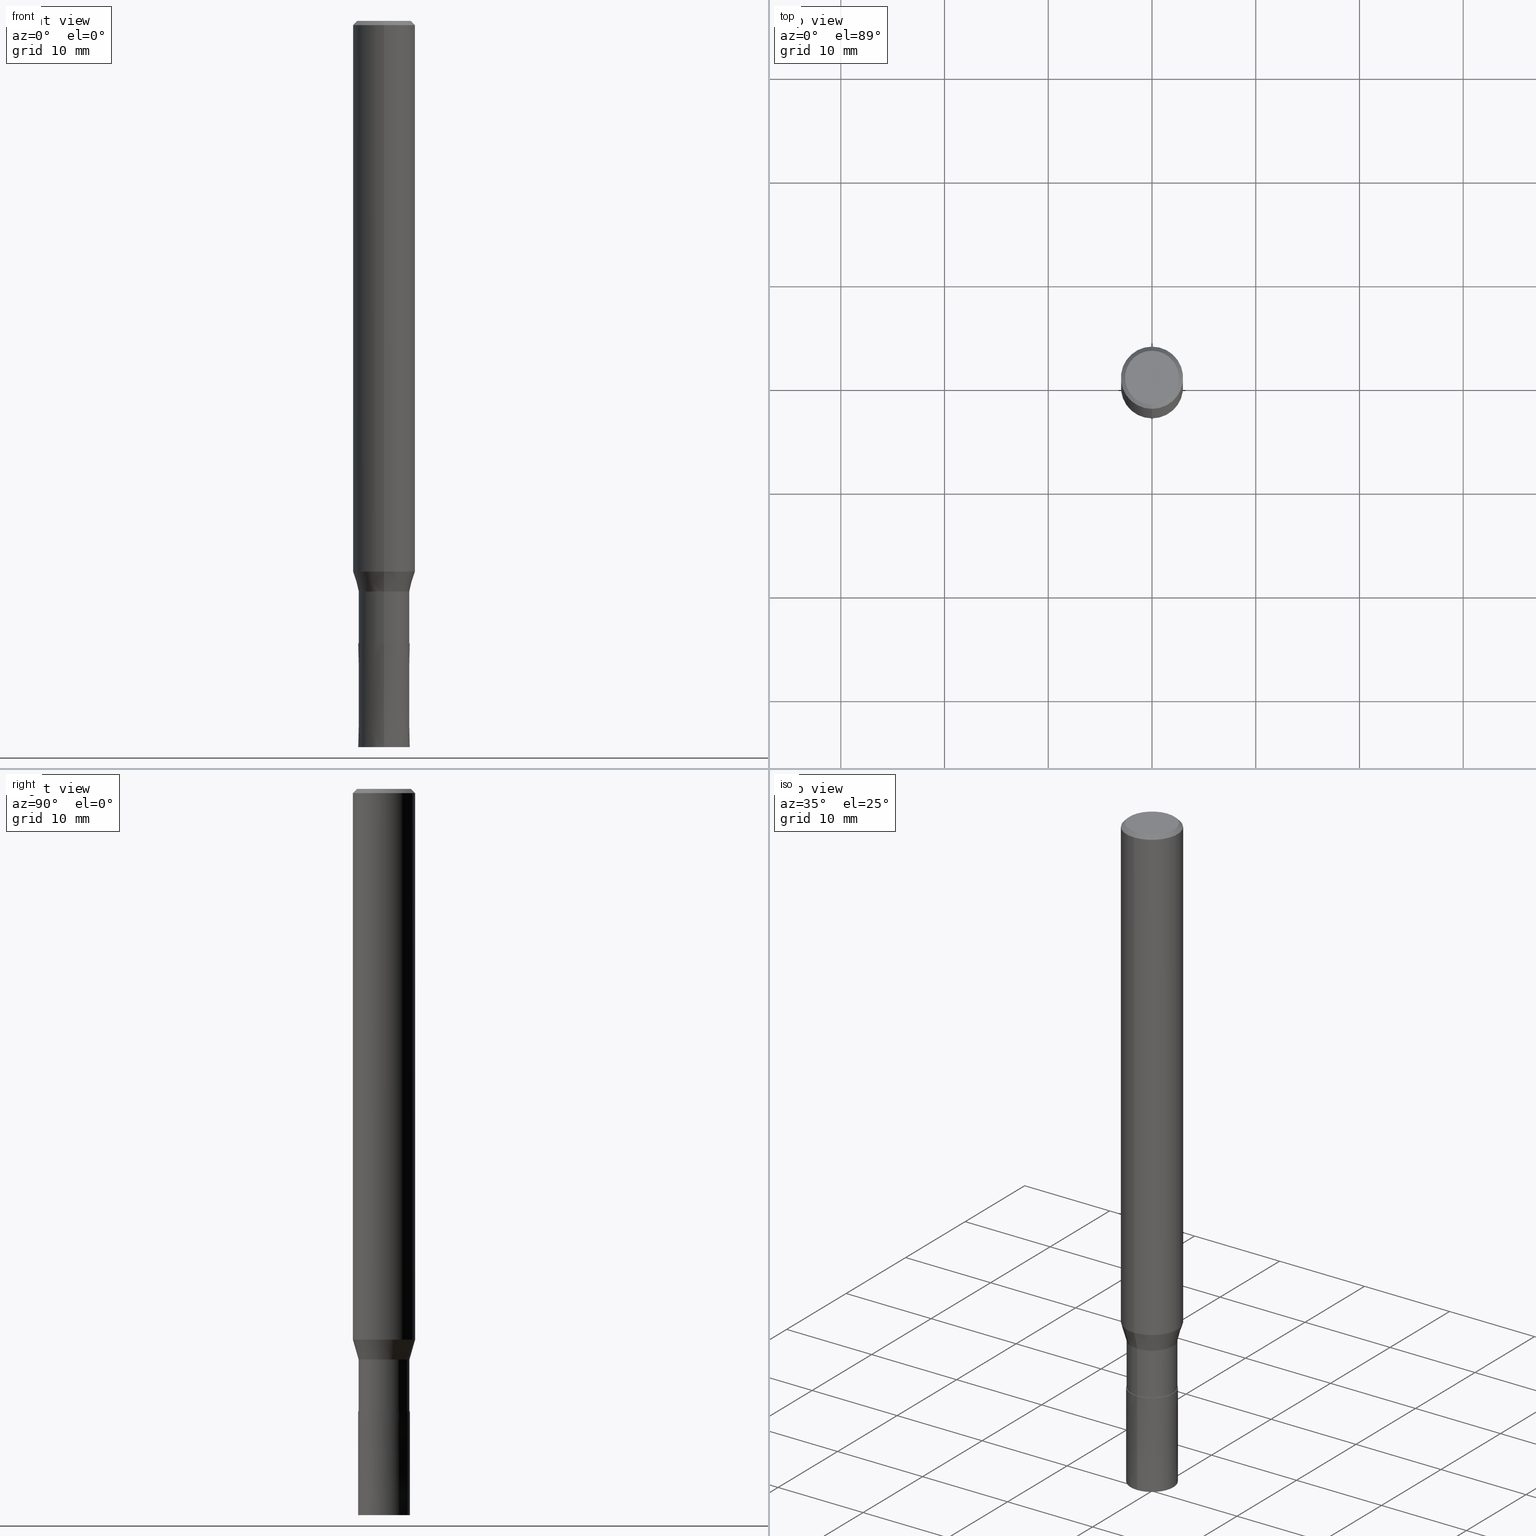
[diagram: canonical four-view strip — front | top / right | iso, engineering-drawing reading convention]
A machine part, canonical four-view strip (front | top / right | iso — engineering-drawing reading convention). The complete STEP part file that produces these views, byte-faithful:
ISO-10303-21;
HEADER;
FILE_DESCRIPTION(('no description'),'unknown implementation level');
FILE_NAME('DLC-AZS3050-150-Huellk.stp','  ',('CIMSOURCE GmbH'),('CADClick - KiM GmbH - www.kimweb.de'),'unknown preprocess','ACIS','unknown authorization');
FILE_SCHEMA(('automotive_design'));
ENDSEC;
DATA;
#1=MECHANICAL_DESIGN_GEOMETRIC_PRESENTATION_REPRESENTATION(' ',(#14,#15,#16,#17,#18,#19,#20,#21,#22,#23,#24,#25,#26,#27,#28,#29,#30,#31,#32,#33,#34,#35,#36,#37,#38,#39,#40,#41,#42,#43,#44,#45,#46,#47,#48,#49,#50,#51,#52,#53,#54,#55,#56,#57,#58,#59,#60,#61,#62,#63,#64,#65,#66,#67,#68,#69,#70,#71,#72),#10);
#2=PRODUCT_DEFINITION_CONTEXT('',#73,'design');
#3=APPLICATION_PROTOCOL_DEFINITION('INTERNATIONAL STANDARD','automotive_design',1994,#73);
#4=PRODUCT_CATEGORY_RELATIONSHIP('NONE','NONE',#74,#75);
#5=SHAPE_DEFINITION_REPRESENTATION(#76,#77);
#6=PRODUCT_DEFINITION_CONTEXT('',#78,'design');
#7=APPLICATION_PROTOCOL_DEFINITION('INTERNATIONAL STANDARD','automotive_design',1994,#78);
#8=PRODUCT_CATEGORY_RELATIONSHIP('NONE','NONE',#79,#80);
#9=SHAPE_DEFINITION_REPRESENTATION(#81,#82);
#10= (GEOMETRIC_REPRESENTATION_CONTEXT(3)GLOBAL_UNCERTAINTY_ASSIGNED_CONTEXT((#85))GLOBAL_UNIT_ASSIGNED_CONTEXT((#87,#88,#89))REPRESENTATION_CONTEXT('NONE','WORKSPACE'));
#14=STYLED_ITEM('',(#91),#92);
#15=STYLED_ITEM('',(#93),#94);
#16=STYLED_ITEM('',(#95),#96);
#17=STYLED_ITEM('',(#97),#98);
#18=STYLED_ITEM('',(#99),#100);
#19=STYLED_ITEM('',(#101),#102);
#20=STYLED_ITEM('',(#103),#104);
#21=STYLED_ITEM('',(#105),#106);
#22=STYLED_ITEM('',(#107),#108);
#23=STYLED_ITEM('',(#109),#110);
#24=STYLED_ITEM('',(#111),#112);
#25=STYLED_ITEM('',(#113),#114);
#26=STYLED_ITEM('',(#115),#116);
#27=STYLED_ITEM('',(#117),#118);
#28=STYLED_ITEM('',(#119),#120);
#29=STYLED_ITEM('',(#121),#122);
#30=STYLED_ITEM('',(#123),#124);
#31=STYLED_ITEM('',(#125),#126);
#32=STYLED_ITEM('',(#127),#128);
#33=STYLED_ITEM('',(#129),#130);
#34=STYLED_ITEM('',(#131),#132);
#35=STYLED_ITEM('',(#133),#134);
#36=STYLED_ITEM('',(#135),#136);
#37=STYLED_ITEM('',(#137),#138);
#38=STYLED_ITEM('',(#139),#140);
#39=STYLED_ITEM('',(#141),#142);
#40=STYLED_ITEM('',(#143),#144);
#41=STYLED_ITEM('',(#145),#146);
#42=STYLED_ITEM('',(#147),#148);
#43=STYLED_ITEM('',(#149),#150);
#44=STYLED_ITEM('',(#151),#152);
#45=STYLED_ITEM('',(#153),#154);
#46=STYLED_ITEM('',(#155),#156);
#47=STYLED_ITEM('',(#157),#158);
#48=STYLED_ITEM('',(#159),#160);
#49=STYLED_ITEM('',(#161),#162);
#50=STYLED_ITEM('',(#163),#164);
#51=STYLED_ITEM('',(#165),#166);
#52=STYLED_ITEM('',(#167),#168);
#53=STYLED_ITEM('',(#169),#170);
#54=STYLED_ITEM('',(#171),#172);
#55=STYLED_ITEM('',(#173),#174);
#56=STYLED_ITEM('',(#175),#176);
#57=STYLED_ITEM('',(#177),#178);
#58=STYLED_ITEM('',(#179),#180);
#59=STYLED_ITEM('',(#181),#182);
#60=STYLED_ITEM('',(#183),#184);
#61=STYLED_ITEM('',(#185),#186);
#62=STYLED_ITEM('',(#187),#188);
#63=STYLED_ITEM('',(#189),#190);
#64=STYLED_ITEM('',(#191),#192);
#65=STYLED_ITEM('',(#193),#194);
#66=STYLED_ITEM('',(#195),#196);
#67=STYLED_ITEM('',(#197),#198);
#68=STYLED_ITEM('',(#199),#200);
#69=STYLED_ITEM('',(#201),#202);
#70=STYLED_ITEM('',(#203),#204);
#71=STYLED_ITEM('',(#205),#206);
#72=STYLED_ITEM('',(#207),#208);
#73=APPLICATION_CONTEXT(' ');
#74=PRODUCT_CATEGORY('part','NONE');
#75=PRODUCT_RELATED_PRODUCT_CATEGORY('detail',' ',(#209));
#76=PRODUCT_DEFINITION_SHAPE('NONE','NONE',#210);
#77=ADVANCED_BREP_SHAPE_REPRESENTATION('1',(#122,#211),#10);
#78=APPLICATION_CONTEXT(' ');
#79=PRODUCT_CATEGORY('part','NONE');
#80=PRODUCT_RELATED_PRODUCT_CATEGORY('detail',' ',(#212));
#81=PRODUCT_DEFINITION_SHAPE('NONE','NONE',#213);
#82=ADVANCED_BREP_SHAPE_REPRESENTATION('2',(#206,#214),#10);
#85=UNCERTAINTY_MEASURE_WITH_UNIT(LENGTH_MEASURE(1.0E-006),#87,'','');
#87= (CONVERSION_BASED_UNIT('MILLIMETRE',#217)LENGTH_UNIT()NAMED_UNIT(#220));
#88= (NAMED_UNIT(#222)PLANE_ANGLE_UNIT()SI_UNIT($,.RADIAN.));
#89= (NAMED_UNIT(#222)SOLID_ANGLE_UNIT()SI_UNIT($,.STERADIAN.));
#91=PRESENTATION_STYLE_ASSIGNMENT((#228));
#92=EDGE_CURVE('',#134,#146,#229,.T.);
#93=PRESENTATION_STYLE_ASSIGNMENT((#230));
#94=EDGE_CURVE('',#120,#104,#231,.T.);
#95=PRESENTATION_STYLE_ASSIGNMENT((#232));
#96=EDGE_CURVE('',#190,#168,#233,.T.);
#97=PRESENTATION_STYLE_ASSIGNMENT((#234));
#98=VERTEX_POINT('',#235);
#99=PRESENTATION_STYLE_ASSIGNMENT((#236));
#100=EDGE_CURVE('',#98,#162,#237,.T.);
#101=PRESENTATION_STYLE_ASSIGNMENT((#238));
#102=EDGE_CURVE('',#154,#124,#239,.T.);
#103=PRESENTATION_STYLE_ASSIGNMENT((#240));
#104=VERTEX_POINT('',#241);
#105=PRESENTATION_STYLE_ASSIGNMENT((#242));
#106=ADVANCED_FACE('',(#243),#244,.T.);
#107=PRESENTATION_STYLE_ASSIGNMENT((#245));
#108=ADVANCED_FACE('',(#246),#247,.T.);
#109=PRESENTATION_STYLE_ASSIGNMENT((#248));
#110=VERTEX_POINT('',#249);
#111=PRESENTATION_STYLE_ASSIGNMENT((#250));
#112=EDGE_CURVE('',#190,#132,#251,.T.);
#113=PRESENTATION_STYLE_ASSIGNMENT((#252));
#114=ADVANCED_FACE('',(#253),#254,.T.);
#115=PRESENTATION_STYLE_ASSIGNMENT((#255));
#116=ADVANCED_FACE('',(#256),#257,.T.);
#117=PRESENTATION_STYLE_ASSIGNMENT((#258));
#118=VERTEX_POINT('',#259);
#119=PRESENTATION_STYLE_ASSIGNMENT((#260));
#120=VERTEX_POINT('',#261);
#121=PRESENTATION_STYLE_ASSIGNMENT((#262));
#122=MANIFOLD_SOLID_BREP('1',#263);
#123=PRESENTATION_STYLE_ASSIGNMENT((#264));
#124=VERTEX_POINT('',#265);
#125=PRESENTATION_STYLE_ASSIGNMENT((#266));
#126=EDGE_CURVE('',#124,#134,#267,.T.);
#127=PRESENTATION_STYLE_ASSIGNMENT((#268));
#128=ADVANCED_FACE('',(#269),#270,.T.);
#129=PRESENTATION_STYLE_ASSIGNMENT((#271));
#130=ADVANCED_FACE('',(#272),#273,.T.);
#131=PRESENTATION_STYLE_ASSIGNMENT((#274));
#132=VERTEX_POINT('',#275);
#133=PRESENTATION_STYLE_ASSIGNMENT((#276));
#134=VERTEX_POINT('',#277);
#135=PRESENTATION_STYLE_ASSIGNMENT((#278));
#136=EDGE_CURVE('',#168,#152,#279,.T.);
#137=PRESENTATION_STYLE_ASSIGNMENT((#280));
#138=ADVANCED_FACE('',(#281),#282,.T.);
#139=PRESENTATION_STYLE_ASSIGNMENT((#283));
#140=EDGE_CURVE('',#166,#168,#284,.T.);
#141=PRESENTATION_STYLE_ASSIGNMENT((#285));
#142=ADVANCED_FACE('',(#286),#287,.T.);
#143=PRESENTATION_STYLE_ASSIGNMENT((#288));
#144=EDGE_CURVE('',#118,#152,#289,.T.);
#145=PRESENTATION_STYLE_ASSIGNMENT((#290));
#146=VERTEX_POINT('',#291);
#147=PRESENTATION_STYLE_ASSIGNMENT((#292));
#148=EDGE_CURVE('',#178,#98,#293,.T.);
#149=PRESENTATION_STYLE_ASSIGNMENT((#294));
#150=EDGE_CURVE('',#162,#110,#295,.T.);
#151=PRESENTATION_STYLE_ASSIGNMENT((#296));
#152=VERTEX_POINT('',#297);
#153=PRESENTATION_STYLE_ASSIGNMENT((#298));
#154=VERTEX_POINT('',#299);
#155=PRESENTATION_STYLE_ASSIGNMENT((#300));
#156=EDGE_CURVE('',#162,#98,#301,.T.);
#157=PRESENTATION_STYLE_ASSIGNMENT((#302));
#158=EDGE_CURVE('',#124,#154,#303,.T.);
#159=PRESENTATION_STYLE_ASSIGNMENT((#304));
#160=ADVANCED_FACE('',(#305,#306),#307,.T.);
#161=PRESENTATION_STYLE_ASSIGNMENT((#308));
#162=VERTEX_POINT('',#309);
#163=PRESENTATION_STYLE_ASSIGNMENT((#310));
#164=EDGE_CURVE('',#104,#162,#311,.T.);
#165=PRESENTATION_STYLE_ASSIGNMENT((#312));
#166=VERTEX_POINT('',#313);
#167=PRESENTATION_STYLE_ASSIGNMENT((#314));
#168=VERTEX_POINT('',#315);
#169=PRESENTATION_STYLE_ASSIGNMENT((#316));
#170=EDGE_CURVE('',#110,#178,#317,.T.);
#171=PRESENTATION_STYLE_ASSIGNMENT((#318));
#172=ADVANCED_FACE('',(#319),#320,.T.);
#173=PRESENTATION_STYLE_ASSIGNMENT((#321));
#174=EDGE_CURVE('',#132,#166,#322,.T.);
#175=PRESENTATION_STYLE_ASSIGNMENT((#323));
#176=ADVANCED_FACE('',(#324),#325,.T.);
#177=PRESENTATION_STYLE_ASSIGNMENT((#326));
#178=VERTEX_POINT('',#327);
#179=PRESENTATION_STYLE_ASSIGNMENT((#328));
#180=ADVANCED_FACE('',(#329),#330,.T.);
#181=PRESENTATION_STYLE_ASSIGNMENT((#331));
#182=ADVANCED_FACE('',(#332),#333,.T.);
#183=PRESENTATION_STYLE_ASSIGNMENT((#334));
#184=EDGE_CURVE('',#146,#134,#335,.T.);
#185=PRESENTATION_STYLE_ASSIGNMENT((#336));
#186=EDGE_CURVE('',#152,#118,#337,.T.);
#187=PRESENTATION_STYLE_ASSIGNMENT((#338));
#188=EDGE_CURVE('',#178,#110,#339,.T.);
#189=PRESENTATION_STYLE_ASSIGNMENT((#340));
#190=VERTEX_POINT('',#341);
#191=PRESENTATION_STYLE_ASSIGNMENT((#342));
#192=EDGE_CURVE('',#168,#190,#343,.T.);
#193=PRESENTATION_STYLE_ASSIGNMENT((#344));
#194=EDGE_CURVE('',#98,#120,#345,.T.);
#195=PRESENTATION_STYLE_ASSIGNMENT((#346));
#196=EDGE_CURVE('',#118,#190,#347,.T.);
#197=PRESENTATION_STYLE_ASSIGNMENT((#348));
#198=EDGE_CURVE('',#166,#132,#349,.T.);
#199=PRESENTATION_STYLE_ASSIGNMENT((#350));
#200=ADVANCED_FACE('',(#351),#352,.T.);
#201=PRESENTATION_STYLE_ASSIGNMENT((#353));
#202=EDGE_CURVE('',#146,#154,#354,.T.);
#203=PRESENTATION_STYLE_ASSIGNMENT((#355));
#204=EDGE_CURVE('',#104,#120,#356,.T.);
#205=PRESENTATION_STYLE_ASSIGNMENT((#357));
#206=MANIFOLD_SOLID_BREP('2',#358);
#207=PRESENTATION_STYLE_ASSIGNMENT((#359));
#208=ADVANCED_FACE('',(#360),#361,.T.);
#209=PRODUCT('1','1','PART-1-DESC',(#362));
#210=PRODUCT_DEFINITION('NONE','NONE',#363,#2);
#211=AXIS2_PLACEMENT_3D('',#364,#365,#366);
#212=PRODUCT('2','2','PART-2-DESC',(#367));
#213=PRODUCT_DEFINITION('NONE','NONE',#368,#6);
#214=AXIS2_PLACEMENT_3D('',#369,#370,#371);
#217=LENGTH_MEASURE_WITH_UNIT(LENGTH_MEASURE(1.0),#372);
#220=DIMENSIONAL_EXPONENTS(1.0,0.0,0.0,0.0,0.0,0.0,0.0);
#222=DIMENSIONAL_EXPONENTS(0.0,0.0,0.0,0.0,0.0,0.0,0.0);
#228=CURVE_STYLE('',#373,POSITIVE_LENGTH_MEASURE(1.0E-006),#374);
#229=CIRCLE('',#375,2.5);
#230=CURVE_STYLE('',#376,POSITIVE_LENGTH_MEASURE(1.0E-006),#377);
#231=CIRCLE('',#378,2.99995);
#232=CURVE_STYLE('',#379,POSITIVE_LENGTH_MEASURE(1.0E-006),#380);
#233=CIRCLE('',#381,3.0);
#234=POINT_STYLE(' ',#382,POSITIVE_LENGTH_MEASURE(1.0E-006),#383);
#235=CARTESIAN_POINT('',(3.00022433654713E-016,-2.44995,-55.0));
#236=CURVE_STYLE('',#384,POSITIVE_LENGTH_MEASURE(1.0E-006),#385);
#237=CIRCLE('',#386,2.44995);
#238=CURVE_STYLE('',#387,POSITIVE_LENGTH_MEASURE(1.0E-006),#388);
#239=CIRCLE('',#389,2.4999);
#240=POINT_STYLE(' ',#390,POSITIVE_LENGTH_MEASURE(1.0E-006),#391);
#241=CARTESIAN_POINT('',(0.0,2.99995,-53.082));
#242=SURFACE_STYLE_USAGE(.BOTH.,#392);
#243=FACE_OUTER_BOUND('',#393,.T.);
#244=CYLINDRICAL_SURFACE('',#394,2.44995);
#245=SURFACE_STYLE_USAGE(.BOTH.,#395);
#246=FACE_OUTER_BOUND('',#396,.T.);
#247=CYLINDRICAL_SURFACE('',#397,3.0);
#248=POINT_STYLE(' ',#398,POSITIVE_LENGTH_MEASURE(1.0E-006),#399);
#249=CARTESIAN_POINT('',(0.0,2.44995,-60.0));
#250=CURVE_STYLE('',#400,POSITIVE_LENGTH_MEASURE(1.0E-006),#401);
#251=LINE('',#402,#403);
#252=SURFACE_STYLE_USAGE(.BOTH.,#404);
#253=FACE_OUTER_BOUND('',#405,.T.);
#254=CONICAL_SURFACE('',#406,2.49995,9.99999999968777E-006);
#255=SURFACE_STYLE_USAGE(.BOTH.,#407);
#256=FACE_OUTER_BOUND('',#408,.T.);
#257=CYLINDRICAL_SURFACE('',#409,2.44995);
#258=POINT_STYLE(' ',#410,POSITIVE_LENGTH_MEASURE(1.0E-006),#411);
#259=CARTESIAN_POINT('',(0.0,2.6,0.0));
#260=POINT_STYLE(' ',#412,POSITIVE_LENGTH_MEASURE(1.0E-006),#413);
#261=CARTESIAN_POINT('',(3.67375783114944E-016,-2.99995,-53.082));
#262=SURFACE_STYLE_USAGE(.BOTH.,#414);
#263=CLOSED_SHELL('',(#106,#176,#138,#128,#160,#172,#130,#108,#180,#116,#142));
#264=POINT_STYLE(' ',#415,POSITIVE_LENGTH_MEASURE(1.0E-006),#416);
#265=CARTESIAN_POINT('',(0.0,2.4999,-60.0));
#266=CURVE_STYLE('',#417,POSITIVE_LENGTH_MEASURE(1.0E-006),#418);
#267=LINE('',#419,#420);
#268=SURFACE_STYLE_USAGE(.BOTH.,#421);
#269=FACE_OUTER_BOUND('',#422,.T.);
#270=CONICAL_SURFACE('',#423,2.8,0.78539816339745);
#271=SURFACE_STYLE_USAGE(.BOTH.,#424);
#272=FACE_OUTER_BOUND('',#425,.T.);
#273=CONICAL_SURFACE('',#426,2.8,0.78539816339745);
#274=POINT_STYLE(' ',#427,POSITIVE_LENGTH_MEASURE(1.0E-006),#428);
#275=CARTESIAN_POINT('',(0.0,3.0,-53.082));
#276=POINT_STYLE(' ',#429,POSITIVE_LENGTH_MEASURE(1.0E-006),#430);
#277=CARTESIAN_POINT('',(0.0,2.5,-70.0));
#278=CURVE_STYLE('',#431,POSITIVE_LENGTH_MEASURE(1.0E-006),#432);
#279=LINE('',#433,#434);
#280=SURFACE_STYLE_USAGE(.BOTH.,#435);
#281=FACE_OUTER_BOUND('',#436,.T.);
#282=CYLINDRICAL_SURFACE('',#437,3.0);
#283=CURVE_STYLE('',#438,POSITIVE_LENGTH_MEASURE(1.0E-006),#439);
#284=LINE('',#440,#441);
#285=SURFACE_STYLE_USAGE(.BOTH.,#442);
#286=FACE_OUTER_BOUND('',#443,.T.);
#287=PLANE('',#444);
#288=CURVE_STYLE('',#445,POSITIVE_LENGTH_MEASURE(1.0E-006),#446);
#289=CIRCLE('',#447,2.6);
#290=POINT_STYLE(' ',#448,POSITIVE_LENGTH_MEASURE(1.0E-006),#449);
#291=CARTESIAN_POINT('',(3.06151588455594E-016,-2.5,-70.0));
#292=CURVE_STYLE('',#450,POSITIVE_LENGTH_MEASURE(1.0E-006),#451);
#293=LINE('',#452,#453);
#294=CURVE_STYLE('',#454,POSITIVE_LENGTH_MEASURE(1.0E-006),#455);
#295=LINE('',#456,#457);
#296=POINT_STYLE(' ',#458,POSITIVE_LENGTH_MEASURE(1.0E-006),#459);
#297=CARTESIAN_POINT('',(3.18397651993818E-016,-2.6,0.0));
#298=POINT_STYLE(' ',#460,POSITIVE_LENGTH_MEASURE(1.0E-006),#461);
#299=CARTESIAN_POINT('',(3.06139342392056E-016,-2.4999,-60.0));
#300=CURVE_STYLE('',#462,POSITIVE_LENGTH_MEASURE(1.0E-006),#463);
#301=CIRCLE('',#464,2.44995);
#302=CURVE_STYLE('',#465,POSITIVE_LENGTH_MEASURE(1.0E-006),#466);
#303=CIRCLE('',#467,2.4999);
#304=SURFACE_STYLE_USAGE(.BOTH.,#468);
#305=FACE_OUTER_BOUND('',#469,.T.);
#306=FACE_BOUND('',#470,.T.);
#307=PLANE('',#471);
#308=POINT_STYLE(' ',#472,POSITIVE_LENGTH_MEASURE(1.0E-006),#473);
#309=CARTESIAN_POINT('',(0.0,2.44995,-55.0));
#310=CURVE_STYLE('',#474,POSITIVE_LENGTH_MEASURE(1.0E-006),#475);
#311=LINE('',#476,#477);
#312=POINT_STYLE(' ',#478,POSITIVE_LENGTH_MEASURE(1.0E-006),#479);
#313=CARTESIAN_POINT('',(3.67381906146713E-016,-3.0,-53.082));
#314=POINT_STYLE(' ',#480,POSITIVE_LENGTH_MEASURE(1.0E-006),#481);
#315=CARTESIAN_POINT('',(3.67381906146713E-016,-3.0,-0.399999999999999));
#316=CURVE_STYLE('',#482,POSITIVE_LENGTH_MEASURE(1.0E-006),#483);
#317=CIRCLE('',#484,2.44995);
#318=SURFACE_STYLE_USAGE(.BOTH.,#485);
#319=FACE_OUTER_BOUND('',#486,.T.);
#320=PLANE('',#487);
#321=CURVE_STYLE('',#488,POSITIVE_LENGTH_MEASURE(1.0E-006),#489);
#322=CIRCLE('',#490,3.0);
#323=SURFACE_STYLE_USAGE(.BOTH.,#491);
#324=FACE_OUTER_BOUND('',#492,.T.);
#325=CONICAL_SURFACE('',#493,2.72495,0.279263447774572);
#326=POINT_STYLE(' ',#494,POSITIVE_LENGTH_MEASURE(1.0E-006),#495);
#327=CARTESIAN_POINT('',(3.00022433654713E-016,-2.44995,-60.0));
#328=SURFACE_STYLE_USAGE(.BOTH.,#496);
#329=FACE_OUTER_BOUND('',#497,.T.);
#330=CONICAL_SURFACE('',#498,2.72495,0.279263447774572);
#331=SURFACE_STYLE_USAGE(.BOTH.,#499);
#332=FACE_OUTER_BOUND('',#500,.T.);
#333=PLANE('',#501);
#334=CURVE_STYLE('',#502,POSITIVE_LENGTH_MEASURE(1.0E-006),#503);
#335=CIRCLE('',#504,2.5);
#336=CURVE_STYLE('',#505,POSITIVE_LENGTH_MEASURE(1.0E-006),#506);
#337=CIRCLE('',#507,2.6);
#338=CURVE_STYLE('',#508,POSITIVE_LENGTH_MEASURE(1.0E-006),#509);
#339=CIRCLE('',#510,2.44995);
#340=POINT_STYLE(' ',#511,POSITIVE_LENGTH_MEASURE(1.0E-006),#512);
#341=CARTESIAN_POINT('',(0.0,3.0,-0.399999999999999));
#342=CURVE_STYLE('',#513,POSITIVE_LENGTH_MEASURE(1.0E-006),#514);
#343=CIRCLE('',#515,3.0);
#344=CURVE_STYLE('',#516,POSITIVE_LENGTH_MEASURE(1.0E-006),#517);
#345=LINE('',#518,#519);
#346=CURVE_STYLE('',#520,POSITIVE_LENGTH_MEASURE(1.0E-006),#521);
#347=LINE('',#522,#523);
#348=CURVE_STYLE('',#524,POSITIVE_LENGTH_MEASURE(1.0E-006),#525);
#349=CIRCLE('',#526,3.0);
#350=SURFACE_STYLE_USAGE(.BOTH.,#527);
#351=FACE_OUTER_BOUND('',#528,.T.);
#352=PLANE('',#529);
#353=CURVE_STYLE('',#530,POSITIVE_LENGTH_MEASURE(1.0E-006),#531);
#354=LINE('',#532,#533);
#355=CURVE_STYLE('',#534,POSITIVE_LENGTH_MEASURE(1.0E-006),#535);
#356=CIRCLE('',#536,2.99995);
#357=SURFACE_STYLE_USAGE(.BOTH.,#537);
#358=CLOSED_SHELL('',(#208,#200,#114,#182));
#359=SURFACE_STYLE_USAGE(.BOTH.,#538);
#360=FACE_OUTER_BOUND('',#539,.T.);
#361=CONICAL_SURFACE('',#540,2.49995,9.99999999968777E-006);
#362=PRODUCT_CONTEXT('',#73,'mechanical');
#363=PRODUCT_DEFINITION_FORMATION_WITH_SPECIFIED_SOURCE(' ','NONE',#209,.NOT_KNOWN.);
#364=CARTESIAN_POINT('',(0.0,0.0,0.0));
#365=DIRECTION('',(0.0,0.0,1.0));
#366=DIRECTION('',(1.0,0.0,0.0));
#367=PRODUCT_CONTEXT('',#78,'mechanical');
#368=PRODUCT_DEFINITION_FORMATION_WITH_SPECIFIED_SOURCE(' ','NONE',#212,.NOT_KNOWN.);
#369=CARTESIAN_POINT('',(0.0,0.0,0.0));
#370=DIRECTION('',(0.0,0.0,1.0));
#371=DIRECTION('',(1.0,0.0,0.0));
#372= (NAMED_UNIT(#220)LENGTH_UNIT()SI_UNIT(.MILLI.,.METRE.));
#373=DRAUGHTING_PRE_DEFINED_CURVE_FONT('continuous');
#374=COLOUR_RGB('',0.800000011920929,0.800000011920929,0.800000011920929);
#375=AXIS2_PLACEMENT_3D('',#542,#543,#544);
#376=DRAUGHTING_PRE_DEFINED_CURVE_FONT('continuous');
#377=COLOUR_RGB('',0.498039215803146,0.498039215803146,0.498039215803146);
#378=AXIS2_PLACEMENT_3D('',#545,#546,#547);
#379=DRAUGHTING_PRE_DEFINED_CURVE_FONT('continuous');
#380=COLOUR_RGB('',0.498039215803146,0.498039215803146,0.498039215803146);
#381=AXIS2_PLACEMENT_3D('',#548,#549,#550);
#382=PRE_DEFINED_MARKER('');
#383=COLOUR_RGB('',0.498039215803146,0.498039215803146,0.498039215803146);
#384=DRAUGHTING_PRE_DEFINED_CURVE_FONT('continuous');
#385=COLOUR_RGB('',0.498039215803146,0.498039215803146,0.498039215803146);
#386=AXIS2_PLACEMENT_3D('',#551,#552,#553);
#387=DRAUGHTING_PRE_DEFINED_CURVE_FONT('continuous');
#388=COLOUR_RGB('',0.800000011920929,0.800000011920929,0.800000011920929);
#389=AXIS2_PLACEMENT_3D('',#554,#555,#556);
#390=PRE_DEFINED_MARKER('');
#391=COLOUR_RGB('',0.498039215803146,0.498039215803146,0.498039215803146);
#392=SURFACE_SIDE_STYLE('',(#557));
#393=EDGE_LOOP('',(#558,#559,#560,#561));
#394=AXIS2_PLACEMENT_3D('',#562,#563,#564);
#395=SURFACE_SIDE_STYLE('',(#565));
#396=EDGE_LOOP('',(#566,#567,#568,#569));
#397=AXIS2_PLACEMENT_3D('',#570,#571,#572);
#398=PRE_DEFINED_MARKER('');
#399=COLOUR_RGB('',0.498039215803146,0.498039215803146,0.498039215803146);
#400=DRAUGHTING_PRE_DEFINED_CURVE_FONT('continuous');
#401=COLOUR_RGB('',0.498039215803146,0.498039215803146,0.498039215803146);
#402=CARTESIAN_POINT('',(-3.67381906146713E-016,3.0,-26.741));
#403=VECTOR('',#573,1.0);
#404=SURFACE_SIDE_STYLE('',(#574));
#405=EDGE_LOOP('',(#575,#576,#577,#578));
#406=AXIS2_PLACEMENT_3D('',#579,#580,#581);
#407=SURFACE_SIDE_STYLE('',(#582));
#408=EDGE_LOOP('',(#583,#584,#585,#586));
#409=AXIS2_PLACEMENT_3D('',#587,#588,#589);
#410=PRE_DEFINED_MARKER('');
#411=COLOUR_RGB('',0.498039215803146,0.498039215803146,0.498039215803146);
#412=PRE_DEFINED_MARKER('');
#413=COLOUR_RGB('',0.498039215803146,0.498039215803146,0.498039215803146);
#414=SURFACE_SIDE_STYLE('',(#590));
#415=PRE_DEFINED_MARKER('');
#416=COLOUR_RGB('',0.800000011920929,0.800000011920929,0.800000011920929);
#417=DRAUGHTING_PRE_DEFINED_CURVE_FONT('continuous');
#418=COLOUR_RGB('',0.800000011920929,0.800000011920929,0.800000011920929);
#419=CARTESIAN_POINT('',(-3.06145465423825E-016,2.49995,-65.0));
#420=VECTOR('',#591,1.0);
#421=SURFACE_SIDE_STYLE('',(#592));
#422=EDGE_LOOP('',(#593,#594,#595,#596));
#423=AXIS2_PLACEMENT_3D('',#597,#598,#599);
#424=SURFACE_SIDE_STYLE('',(#600));
#425=EDGE_LOOP('',(#601,#602,#603,#604));
#426=AXIS2_PLACEMENT_3D('',#605,#606,#607);
#427=PRE_DEFINED_MARKER('');
#428=COLOUR_RGB('',0.498039215803146,0.498039215803146,0.498039215803146);
#429=PRE_DEFINED_MARKER('');
#430=COLOUR_RGB('',0.800000011920929,0.800000011920929,0.800000011920929);
#431=DRAUGHTING_PRE_DEFINED_CURVE_FONT('continuous');
#432=COLOUR_RGB('',0.498039215803146,0.498039215803146,0.498039215803146);
#433=CARTESIAN_POINT('',(3.42889779070266E-016,-2.8,-0.200000000000003));
#434=VECTOR('',#608,1.0);
#435=SURFACE_SIDE_STYLE('',(#609));
#436=EDGE_LOOP('',(#610,#611,#612,#613));
#437=AXIS2_PLACEMENT_3D('',#614,#615,#616);
#438=DRAUGHTING_PRE_DEFINED_CURVE_FONT('continuous');
#439=COLOUR_RGB('',0.498039215803146,0.498039215803146,0.498039215803146);
#440=CARTESIAN_POINT('',(3.67381906146713E-016,-3.0,-26.741));
#441=VECTOR('',#617,1.0);
#442=SURFACE_SIDE_STYLE('',(#618));
#443=EDGE_LOOP('',(#619,#620));
#444=AXIS2_PLACEMENT_3D('',#621,#622,#623);
#445=DRAUGHTING_PRE_DEFINED_CURVE_FONT('continuous');
#446=COLOUR_RGB('',0.498039215803146,0.498039215803146,0.498039215803146);
#447=AXIS2_PLACEMENT_3D('',#624,#625,#626);
#448=PRE_DEFINED_MARKER('');
#449=COLOUR_RGB('',0.800000011920929,0.800000011920929,0.800000011920929);
#450=DRAUGHTING_PRE_DEFINED_CURVE_FONT('continuous');
#451=COLOUR_RGB('',0.498039215803146,0.498039215803146,0.498039215803146);
#452=CARTESIAN_POINT('',(3.00022433654713E-016,-2.44995,-57.5));
#453=VECTOR('',#627,1.0);
#454=DRAUGHTING_PRE_DEFINED_CURVE_FONT('continuous');
#455=COLOUR_RGB('',0.498039215803146,0.498039215803146,0.498039215803146);
#456=CARTESIAN_POINT('',(-3.00022433654713E-016,2.44995,-57.5));
#457=VECTOR('',#628,1.0);
#458=PRE_DEFINED_MARKER('');
#459=COLOUR_RGB('',0.498039215803146,0.498039215803146,0.498039215803146);
#460=PRE_DEFINED_MARKER('');
#461=COLOUR_RGB('',0.800000011920929,0.800000011920929,0.800000011920929);
#462=DRAUGHTING_PRE_DEFINED_CURVE_FONT('continuous');
#463=COLOUR_RGB('',0.498039215803146,0.498039215803146,0.498039215803146);
#464=AXIS2_PLACEMENT_3D('',#629,#630,#631);
#465=DRAUGHTING_PRE_DEFINED_CURVE_FONT('continuous');
#466=COLOUR_RGB('',0.800000011920929,0.800000011920929,0.800000011920929);
#467=AXIS2_PLACEMENT_3D('',#632,#633,#634);
#468=SURFACE_SIDE_STYLE('',(#635));
#469=EDGE_LOOP('',(#636,#637));
#470=EDGE_LOOP('',(#638,#639));
#471=AXIS2_PLACEMENT_3D('',#640,#641,#642);
#472=PRE_DEFINED_MARKER('');
#473=COLOUR_RGB('',0.498039215803146,0.498039215803146,0.498039215803146);
#474=DRAUGHTING_PRE_DEFINED_CURVE_FONT('continuous');
#475=COLOUR_RGB('',0.498039215803146,0.498039215803146,0.498039215803146);
#476=CARTESIAN_POINT('',(-3.33699108384829E-016,2.72495,-54.041));
#477=VECTOR('',#643,1.0);
#478=PRE_DEFINED_MARKER('');
#479=COLOUR_RGB('',0.498039215803146,0.498039215803146,0.498039215803146);
#480=PRE_DEFINED_MARKER('');
#481=COLOUR_RGB('',0.498039215803146,0.498039215803146,0.498039215803146);
#482=DRAUGHTING_PRE_DEFINED_CURVE_FONT('continuous');
#483=COLOUR_RGB('',0.498039215803146,0.498039215803146,0.498039215803146);
#484=AXIS2_PLACEMENT_3D('',#644,#645,#646);
#485=SURFACE_SIDE_STYLE('',(#647));
#486=EDGE_LOOP('',(#648,#649));
#487=AXIS2_PLACEMENT_3D('',#650,#651,#652);
#488=DRAUGHTING_PRE_DEFINED_CURVE_FONT('continuous');
#489=COLOUR_RGB('',0.498039215803146,0.498039215803146,0.498039215803146);
#490=AXIS2_PLACEMENT_3D('',#653,#654,#655);
#491=SURFACE_SIDE_STYLE('',(#656));
#492=EDGE_LOOP('',(#657,#658,#659,#660));
#493=AXIS2_PLACEMENT_3D('',#661,#662,#663);
#494=PRE_DEFINED_MARKER('');
#495=COLOUR_RGB('',0.498039215803146,0.498039215803146,0.498039215803146);
#496=SURFACE_SIDE_STYLE('',(#664));
#497=EDGE_LOOP('',(#665,#666,#667,#668));
#498=AXIS2_PLACEMENT_3D('',#669,#670,#671);
#499=SURFACE_SIDE_STYLE('',(#672));
#500=EDGE_LOOP('',(#673,#674));
#501=AXIS2_PLACEMENT_3D('',#675,#676,#677);
#502=DRAUGHTING_PRE_DEFINED_CURVE_FONT('continuous');
#503=COLOUR_RGB('',0.800000011920929,0.800000011920929,0.800000011920929);
#504=AXIS2_PLACEMENT_3D('',#678,#679,#680);
#505=DRAUGHTING_PRE_DEFINED_CURVE_FONT('continuous');
#506=COLOUR_RGB('',0.498039215803146,0.498039215803146,0.498039215803146);
#507=AXIS2_PLACEMENT_3D('',#681,#682,#683);
#508=DRAUGHTING_PRE_DEFINED_CURVE_FONT('continuous');
#509=COLOUR_RGB('',0.498039215803146,0.498039215803146,0.498039215803146);
#510=AXIS2_PLACEMENT_3D('',#684,#685,#686);
#511=PRE_DEFINED_MARKER('');
#512=COLOUR_RGB('',0.498039215803146,0.498039215803146,0.498039215803146);
#513=DRAUGHTING_PRE_DEFINED_CURVE_FONT('continuous');
#514=COLOUR_RGB('',0.498039215803146,0.498039215803146,0.498039215803146);
#515=AXIS2_PLACEMENT_3D('',#687,#688,#689);
#516=DRAUGHTING_PRE_DEFINED_CURVE_FONT('continuous');
#517=COLOUR_RGB('',0.498039215803146,0.498039215803146,0.498039215803146);
#518=CARTESIAN_POINT('',(3.33699108384829E-016,-2.72495,-54.041));
#519=VECTOR('',#690,1.0);
#520=DRAUGHTING_PRE_DEFINED_CURVE_FONT('continuous');
#521=COLOUR_RGB('',0.498039215803146,0.498039215803146,0.498039215803146);
#522=CARTESIAN_POINT('',(-3.42889779070266E-016,2.8,-0.200000000000003));
#523=VECTOR('',#691,1.0);
#524=DRAUGHTING_PRE_DEFINED_CURVE_FONT('continuous');
#525=COLOUR_RGB('',0.498039215803146,0.498039215803146,0.498039215803146);
#526=AXIS2_PLACEMENT_3D('',#692,#693,#694);
#527=SURFACE_SIDE_STYLE('',(#695));
#528=EDGE_LOOP('',(#696,#697));
#529=AXIS2_PLACEMENT_3D('',#698,#699,#700);
#530=DRAUGHTING_PRE_DEFINED_CURVE_FONT('continuous');
#531=COLOUR_RGB('',0.800000011920929,0.800000011920929,0.800000011920929);
#532=CARTESIAN_POINT('',(3.06145465423825E-016,-2.49995,-65.0));
#533=VECTOR('',#701,1.0);
#534=DRAUGHTING_PRE_DEFINED_CURVE_FONT('continuous');
#535=COLOUR_RGB('',0.498039215803146,0.498039215803146,0.498039215803146);
#536=AXIS2_PLACEMENT_3D('',#702,#703,#704);
#537=SURFACE_SIDE_STYLE('',(#705));
#538=SURFACE_SIDE_STYLE('',(#706));
#539=EDGE_LOOP('',(#707,#708,#709,#710));
#540=AXIS2_PLACEMENT_3D('',#711,#712,#713);
#542=CARTESIAN_POINT('',(0.0,0.0,-70.0));
#543=DIRECTION('',(0.0,0.0,-1.0));
#544=DIRECTION('',(0.0,1.0,0.0));
#545=CARTESIAN_POINT('',(0.0,0.0,-53.082));
#546=DIRECTION('',(0.0,0.0,-1.0));
#547=DIRECTION('',(0.0,1.0,0.0));
#548=CARTESIAN_POINT('',(0.0,0.0,-0.399999999999999));
#549=DIRECTION('',(0.0,0.0,-1.0));
#550=DIRECTION('',(0.0,1.0,0.0));
#551=CARTESIAN_POINT('',(0.0,0.0,-55.0));
#552=DIRECTION('',(0.0,0.0,-1.0));
#553=DIRECTION('',(0.0,1.0,0.0));
#554=CARTESIAN_POINT('',(0.0,0.0,-60.0));
#555=DIRECTION('',(0.0,0.0,-1.0));
#556=DIRECTION('',(0.0,1.0,0.0));
#557=SURFACE_STYLE_FILL_AREA(#714);
#558=ORIENTED_EDGE('',*,*,#150,.F.);
#559=ORIENTED_EDGE('',*,*,#156,.T.);
#560=ORIENTED_EDGE('',*,*,#148,.F.);
#561=ORIENTED_EDGE('',*,*,#170,.F.);
#562=CARTESIAN_POINT('',(0.0,0.0,-57.5));
#563=DIRECTION('',(-0.0,-0.0,1.0));
#564=DIRECTION('',(0.0,1.0,0.0));
#565=SURFACE_STYLE_FILL_AREA(#715);
#566=ORIENTED_EDGE('',*,*,#112,.T.);
#567=ORIENTED_EDGE('',*,*,#198,.F.);
#568=ORIENTED_EDGE('',*,*,#140,.T.);
#569=ORIENTED_EDGE('',*,*,#192,.T.);
#570=CARTESIAN_POINT('',(0.0,0.0,-26.741));
#571=DIRECTION('',(-0.0,-0.0,1.0));
#572=DIRECTION('',(0.0,1.0,0.0));
#573=DIRECTION('',(0.0,0.0,-1.0));
#574=SURFACE_STYLE_FILL_AREA(#716);
#575=ORIENTED_EDGE('',*,*,#126,.T.);
#576=ORIENTED_EDGE('',*,*,#184,.F.);
#577=ORIENTED_EDGE('',*,*,#202,.T.);
#578=ORIENTED_EDGE('',*,*,#102,.T.);
#579=CARTESIAN_POINT('',(0.0,0.0,-65.0));
#580=DIRECTION('',(0.0,-0.0,-1.0));
#581=DIRECTION('',(0.0,1.0,0.0));
#582=SURFACE_STYLE_FILL_AREA(#717);
#583=ORIENTED_EDGE('',*,*,#150,.T.);
#584=ORIENTED_EDGE('',*,*,#188,.F.);
#585=ORIENTED_EDGE('',*,*,#148,.T.);
#586=ORIENTED_EDGE('',*,*,#100,.T.);
#587=CARTESIAN_POINT('',(0.0,0.0,-57.5));
#588=DIRECTION('',(-0.0,-0.0,1.0));
#589=DIRECTION('',(0.0,1.0,0.0));
#590=SURFACE_STYLE_FILL_AREA(#718);
#591=DIRECTION('',(-1.22460635376373E-021,9.9999999995211E-006,-0.99999999995));
#592=SURFACE_STYLE_FILL_AREA(#719);
#593=ORIENTED_EDGE('',*,*,#196,.F.);
#594=ORIENTED_EDGE('',*,*,#144,.T.);
#595=ORIENTED_EDGE('',*,*,#136,.F.);
#596=ORIENTED_EDGE('',*,*,#96,.F.);
#597=CARTESIAN_POINT('',(0.0,0.0,-0.200000000000003));
#598=DIRECTION('',(0.0,-0.0,-1.0));
#599=DIRECTION('',(0.0,1.0,0.0));
#600=SURFACE_STYLE_FILL_AREA(#720);
#601=ORIENTED_EDGE('',*,*,#196,.T.);
#602=ORIENTED_EDGE('',*,*,#192,.F.);
#603=ORIENTED_EDGE('',*,*,#136,.T.);
#604=ORIENTED_EDGE('',*,*,#186,.T.);
#605=CARTESIAN_POINT('',(0.0,0.0,-0.200000000000003));
#606=DIRECTION('',(0.0,-0.0,-1.0));
#607=DIRECTION('',(0.0,1.0,0.0));
#608=DIRECTION('',(-8.65927457071937E-017,0.707106781186549,0.707106781186546));
#609=SURFACE_STYLE_FILL_AREA(#721);
#610=ORIENTED_EDGE('',*,*,#112,.F.);
#611=ORIENTED_EDGE('',*,*,#96,.T.);
#612=ORIENTED_EDGE('',*,*,#140,.F.);
#613=ORIENTED_EDGE('',*,*,#174,.F.);
#614=CARTESIAN_POINT('',(0.0,0.0,-26.741));
#615=DIRECTION('',(-0.0,-0.0,1.0));
#616=DIRECTION('',(0.0,1.0,0.0));
#617=DIRECTION('',(-0.0,-0.0,1.0));
#618=SURFACE_STYLE_FILL_AREA(#722);
#619=ORIENTED_EDGE('',*,*,#170,.T.);
#620=ORIENTED_EDGE('',*,*,#188,.T.);
#621=CARTESIAN_POINT('',(0.0,1.224975,-60.0));
#622=DIRECTION('',(0.0,0.0,-1.0));
#623=DIRECTION('',(0.0,1.0,0.0));
#624=CARTESIAN_POINT('',(0.0,0.0,0.0));
#625=DIRECTION('',(0.0,0.0,-1.0));
#626=DIRECTION('',(0.0,1.0,0.0));
#627=DIRECTION('',(-0.0,-0.0,1.0));
#628=DIRECTION('',(0.0,0.0,-1.0));
#629=CARTESIAN_POINT('',(0.0,0.0,-55.0));
#630=DIRECTION('',(0.0,0.0,-1.0));
#631=DIRECTION('',(0.0,1.0,0.0));
#632=CARTESIAN_POINT('',(0.0,0.0,-60.0));
#633=DIRECTION('',(0.0,0.0,-1.0));
#634=DIRECTION('',(0.0,1.0,0.0));
#635=SURFACE_STYLE_FILL_AREA(#723);
#636=ORIENTED_EDGE('',*,*,#174,.T.);
#637=ORIENTED_EDGE('',*,*,#198,.T.);
#638=ORIENTED_EDGE('',*,*,#204,.F.);
#639=ORIENTED_EDGE('',*,*,#94,.F.);
#640=CARTESIAN_POINT('',(0.0,1.5,-53.082));
#641=DIRECTION('',(0.0,0.0,-1.0));
#642=DIRECTION('',(0.0,1.0,0.0));
#643=DIRECTION('',(3.37559932359937E-017,-0.275647706143536,-0.961258727969638));
#644=CARTESIAN_POINT('',(0.0,0.0,-60.0));
#645=DIRECTION('',(0.0,0.0,-1.0));
#646=DIRECTION('',(0.0,1.0,0.0));
#647=SURFACE_STYLE_FILL_AREA(#724);
#648=ORIENTED_EDGE('',*,*,#144,.F.);
#649=ORIENTED_EDGE('',*,*,#186,.F.);
#650=CARTESIAN_POINT('',(0.0,1.3,0.0));
#651=DIRECTION('',(-0.0,0.0,1.0));
#652=DIRECTION('',(0.0,-1.0,0.0));
#653=CARTESIAN_POINT('',(0.0,0.0,-53.082));
#654=DIRECTION('',(0.0,0.0,-1.0));
#655=DIRECTION('',(0.0,1.0,0.0));
#656=SURFACE_STYLE_FILL_AREA(#725);
#657=ORIENTED_EDGE('',*,*,#164,.F.);
#658=ORIENTED_EDGE('',*,*,#204,.T.);
#659=ORIENTED_EDGE('',*,*,#194,.F.);
#660=ORIENTED_EDGE('',*,*,#156,.F.);
#661=CARTESIAN_POINT('',(0.0,0.0,-54.041));
#662=DIRECTION('',(-0.0,-0.0,1.0));
#663=DIRECTION('',(0.0,1.0,0.0));
#664=SURFACE_STYLE_FILL_AREA(#726);
#665=ORIENTED_EDGE('',*,*,#164,.T.);
#666=ORIENTED_EDGE('',*,*,#100,.F.);
#667=ORIENTED_EDGE('',*,*,#194,.T.);
#668=ORIENTED_EDGE('',*,*,#94,.T.);
#669=CARTESIAN_POINT('',(0.0,0.0,-54.041));
#670=DIRECTION('',(-0.0,-0.0,1.0));
#671=DIRECTION('',(0.0,1.0,0.0));
#672=SURFACE_STYLE_FILL_AREA(#727);
#673=ORIENTED_EDGE('',*,*,#92,.T.);
#674=ORIENTED_EDGE('',*,*,#184,.T.);
#675=CARTESIAN_POINT('',(0.0,1.2475,-70.0));
#676=DIRECTION('',(0.0,0.0,-1.0));
#677=DIRECTION('',(0.0,1.0,0.0));
#678=CARTESIAN_POINT('',(0.0,0.0,-70.0));
#679=DIRECTION('',(0.0,0.0,-1.0));
#680=DIRECTION('',(0.0,1.0,0.0));
#681=CARTESIAN_POINT('',(0.0,0.0,0.0));
#682=DIRECTION('',(0.0,0.0,-1.0));
#683=DIRECTION('',(0.0,1.0,0.0));
#684=CARTESIAN_POINT('',(0.0,0.0,-60.0));
#685=DIRECTION('',(0.0,0.0,-1.0));
#686=DIRECTION('',(0.0,1.0,0.0));
#687=CARTESIAN_POINT('',(0.0,0.0,-0.399999999999999));
#688=DIRECTION('',(0.0,0.0,-1.0));
#689=DIRECTION('',(0.0,1.0,0.0));
#690=DIRECTION('',(3.37559932359937E-017,-0.275647706143536,0.961258727969638));
#691=DIRECTION('',(-8.65927457071937E-017,0.707106781186549,-0.707106781186546));
#692=CARTESIAN_POINT('',(0.0,0.0,-53.082));
#693=DIRECTION('',(0.0,0.0,-1.0));
#694=DIRECTION('',(0.0,1.0,0.0));
#695=SURFACE_STYLE_FILL_AREA(#728);
#696=ORIENTED_EDGE('',*,*,#158,.F.);
#697=ORIENTED_EDGE('',*,*,#102,.F.);
#698=CARTESIAN_POINT('',(0.0,1.24995,-60.0));
#699=DIRECTION('',(-0.0,0.0,1.0));
#700=DIRECTION('',(0.0,-1.0,0.0));
#701=DIRECTION('',(-1.22460635376373E-021,9.9999999995211E-006,0.99999999995));
#702=CARTESIAN_POINT('',(0.0,0.0,-53.082));
#703=DIRECTION('',(0.0,0.0,-1.0));
#704=DIRECTION('',(0.0,1.0,0.0));
#705=SURFACE_STYLE_FILL_AREA(#729);
#706=SURFACE_STYLE_FILL_AREA(#730);
#707=ORIENTED_EDGE('',*,*,#126,.F.);
#708=ORIENTED_EDGE('',*,*,#158,.T.);
#709=ORIENTED_EDGE('',*,*,#202,.F.);
#710=ORIENTED_EDGE('',*,*,#92,.F.);
#711=CARTESIAN_POINT('',(0.0,0.0,-65.0));
#712=DIRECTION('',(0.0,-0.0,-1.0));
#713=DIRECTION('',(0.0,1.0,0.0));
#714=FILL_AREA_STYLE('',(#731));
#715=FILL_AREA_STYLE('',(#732));
#716=FILL_AREA_STYLE('',(#733));
#717=FILL_AREA_STYLE('',(#734));
#718=FILL_AREA_STYLE('',(#735));
#719=FILL_AREA_STYLE('',(#736));
#720=FILL_AREA_STYLE('',(#737));
#721=FILL_AREA_STYLE('',(#738));
#722=FILL_AREA_STYLE('',(#739));
#723=FILL_AREA_STYLE('',(#740));
#724=FILL_AREA_STYLE('',(#741));
#725=FILL_AREA_STYLE('',(#742));
#726=FILL_AREA_STYLE('',(#743));
#727=FILL_AREA_STYLE('',(#744));
#728=FILL_AREA_STYLE('',(#745));
#729=FILL_AREA_STYLE('',(#746));
#730=FILL_AREA_STYLE('',(#747));
#731=FILL_AREA_STYLE_COLOUR('',#748);
#732=FILL_AREA_STYLE_COLOUR('',#749);
#733=FILL_AREA_STYLE_COLOUR('',#750);
#734=FILL_AREA_STYLE_COLOUR('',#751);
#735=FILL_AREA_STYLE_COLOUR('',#752);
#736=FILL_AREA_STYLE_COLOUR('',#753);
#737=FILL_AREA_STYLE_COLOUR('',#754);
#738=FILL_AREA_STYLE_COLOUR('',#755);
#739=FILL_AREA_STYLE_COLOUR('',#756);
#740=FILL_AREA_STYLE_COLOUR('',#757);
#741=FILL_AREA_STYLE_COLOUR('',#758);
#742=FILL_AREA_STYLE_COLOUR('',#759);
#743=FILL_AREA_STYLE_COLOUR('',#760);
#744=FILL_AREA_STYLE_COLOUR('',#761);
#745=FILL_AREA_STYLE_COLOUR('',#762);
#746=FILL_AREA_STYLE_COLOUR('',#763);
#747=FILL_AREA_STYLE_COLOUR('',#764);
#748=COLOUR_RGB('',0.498039215803146,0.498039215803146,0.498039215803146);
#749=COLOUR_RGB('',0.498039215803146,0.498039215803146,0.498039215803146);
#750=COLOUR_RGB('',0.800000011920929,0.800000011920929,0.800000011920929);
#751=COLOUR_RGB('',0.498039215803146,0.498039215803146,0.498039215803146);
#752=COLOUR_RGB('',0.498039215803146,0.498039215803146,0.498039215803146);
#753=COLOUR_RGB('',0.498039215803146,0.498039215803146,0.498039215803146);
#754=COLOUR_RGB('',0.498039215803146,0.498039215803146,0.498039215803146);
#755=COLOUR_RGB('',0.498039215803146,0.498039215803146,0.498039215803146);
#756=COLOUR_RGB('',0.498039215803146,0.498039215803146,0.498039215803146);
#757=COLOUR_RGB('',0.498039215803146,0.498039215803146,0.498039215803146);
#758=COLOUR_RGB('',0.498039215803146,0.498039215803146,0.498039215803146);
#759=COLOUR_RGB('',0.498039215803146,0.498039215803146,0.498039215803146);
#760=COLOUR_RGB('',0.498039215803146,0.498039215803146,0.498039215803146);
#761=COLOUR_RGB('',0.800000011920929,0.800000011920929,0.800000011920929);
#762=COLOUR_RGB('',0.800000011920929,0.800000011920929,0.800000011920929);
#763=COLOUR_RGB('',0.800000011920929,0.800000011920929,0.800000011920929);
#764=COLOUR_RGB('',0.800000011920929,0.800000011920929,0.800000011920929);
#765=AXIS2_PLACEMENT_3D('PCS',#766,#767,#768);
#766=CARTESIAN_POINT('',(0.0,0.0,0.0));
#767=DIRECTION('',(0.0,0.0,1.0));
#768=DIRECTION('',(1.0,0.0,0.0));
#769=AXIS2_PLACEMENT_3D('CIP',#770,#771,#772);
#770=CARTESIAN_POINT('',(0.0,0.0,-70.0));
#771=DIRECTION('',(0.0,0.0,1.0));
#772=DIRECTION('',(1.0,0.0,0.0));
#773=AXIS2_PLACEMENT_3D('CRP',#774,#775,#776);
#774=CARTESIAN_POINT('',(-2.5,0.0,-70.0));
#775=DIRECTION('',(0.0,0.0,1.0));
#776=DIRECTION('',(1.0,0.0,0.0));
#777=AXIS2_PLACEMENT_3D('MCS',#778,#779,#780);
#778=CARTESIAN_POINT('',(0.0,0.0,-53.082));
#779=DIRECTION('',(0.0,0.0,1.0));
#780=DIRECTION('',(1.0,0.0,0.0));
#781=CONSTRUCTIVE_GEOMETRY_REPRESENTATION_RELATIONSHIP('coordinate systems',$,#77,#782);
#782=CONSTRUCTIVE_GEOMETRY_REPRESENTATION('coordinate systems',(#765,#769,#773,#777),#10);
ENDSEC;
END-ISO-10303-21;
